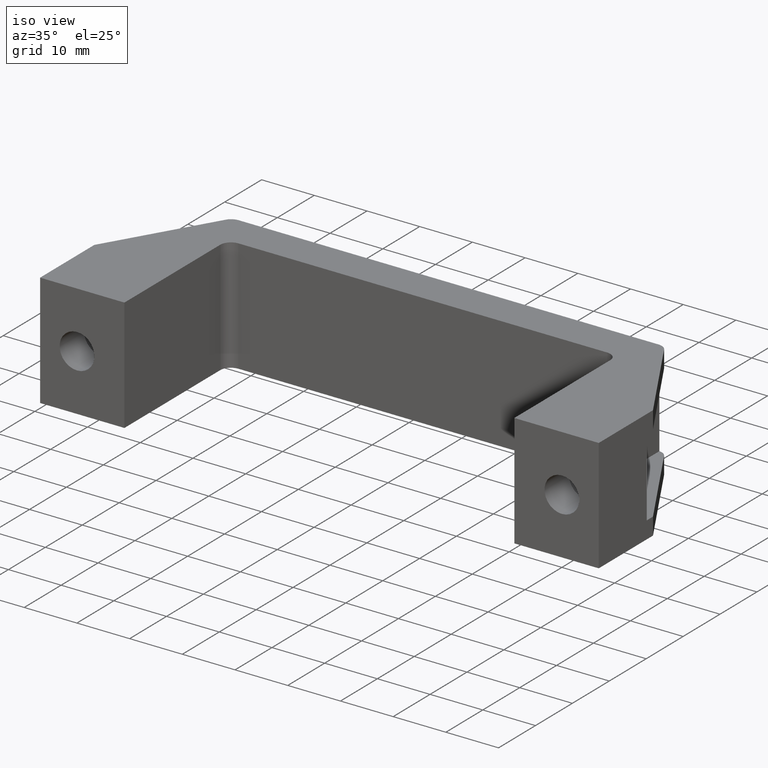
[diagram: clean part render]
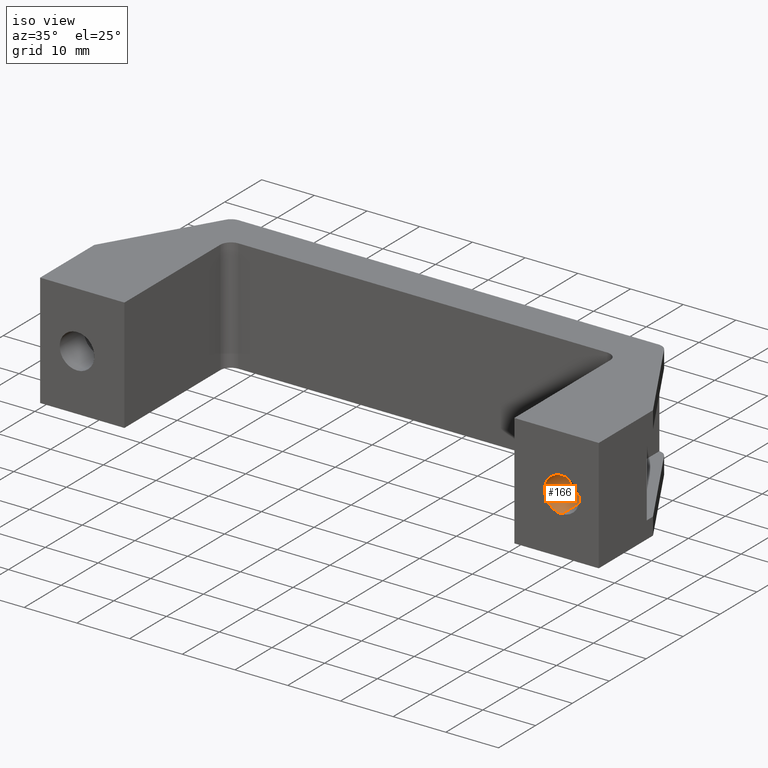
[diagram: same view with one face highlighted and labeled with its STEP entity id]
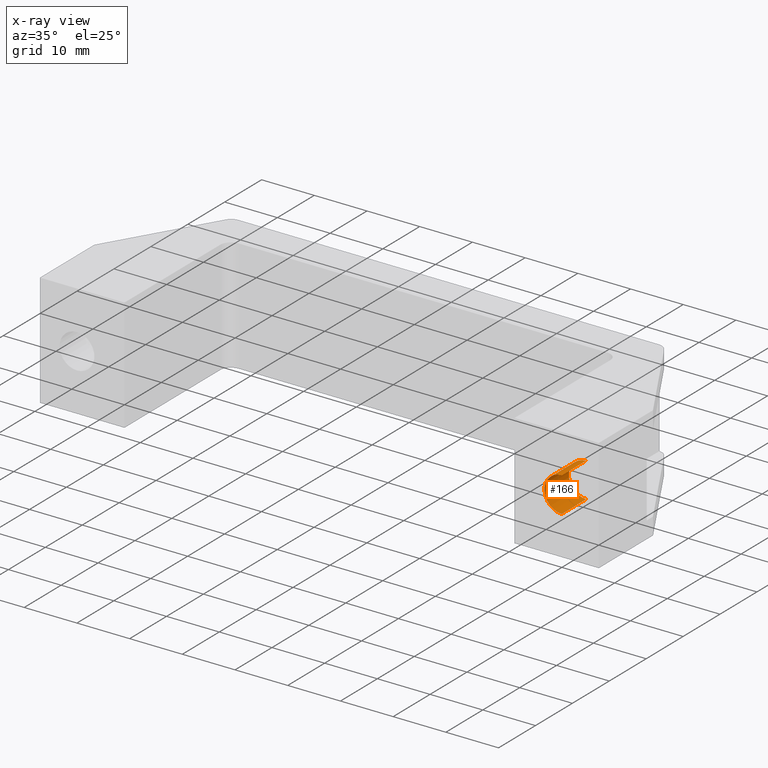
[diagram: x-ray of the same camera — body ghosted, the highlighted face saturated]
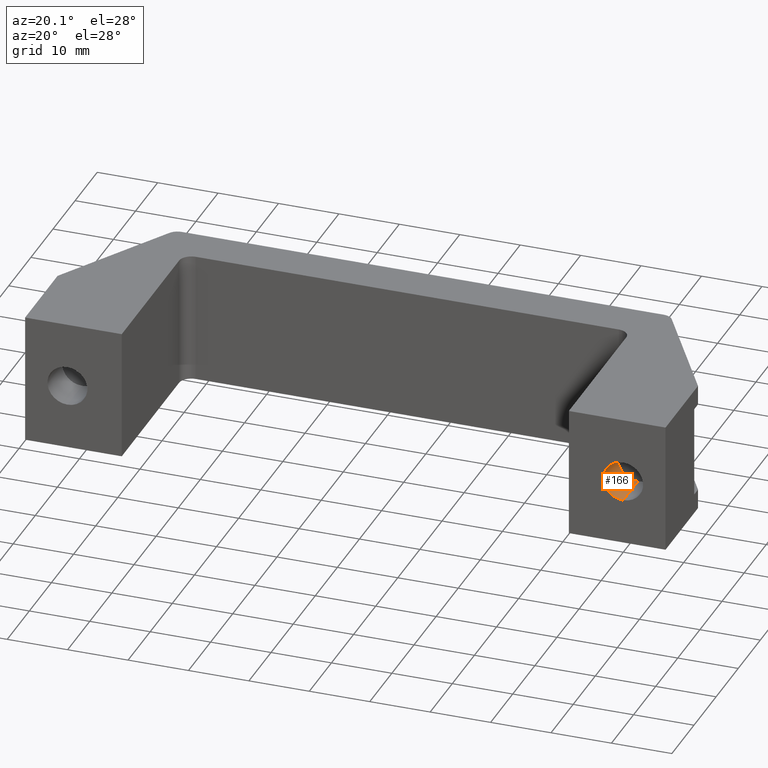
[diagram: same view with one face highlighted and labeled with its STEP entity id]
A machine part, iso view. The second image highlights one B-rep face of the part: STEP entity #166.
The next image is the same camera in x-ray: the body ghosted, the highlighted face saturated — about 0% of this face is hidden behind the body in this view.
A second angle (auxiliary view) of the same face is appended — the face is thin or edge-on in the first view.
In plain terms, the highlighted cylindrical surface (edge-blend (fillet) strip) has radius 3.3 mm, axis along (-0, 1, 0).
Its self-contained STEP definition (entity closure, byte-faithful):
#123 = AXIS2_PLACEMENT_3D ( 'NONE', #1114, #1111, #1106 ) ;
#127 = AXIS2_PLACEMENT_3D ( 'NONE', #1117, #1116, #1115 ) ;
#166 = ADVANCED_FACE ( 'NONE', ( #568 ), #566, .F. ) ;
#260 = AXIS2_PLACEMENT_3D ( 'NONE', #457, #456, #455 ) ;
#455 = DIRECTION ( 'NONE',  ( 0.0000000000000000000, 0.0000000000000000000, 1.000000000000000000 ) ) ;
#456 = DIRECTION ( 'NONE',  ( -0.0000000000000000000, 1.000000000000000000, 0.0000000000000000000 ) ) ;
#457 = CARTESIAN_POINT ( 'NONE',  ( 100.0000000000000000, 0.0000000000000000000, -10.75000000000000000 ) ) ;
#566 = CYLINDRICAL_SURFACE ( 'NONE', #260, 3.300000000000000700 ) ;
#568 = FACE_OUTER_BOUND ( 'NONE', #599, .T. ) ;
#599 = EDGE_LOOP ( 'NONE', ( #842, #841, #844, #674 ) ) ;
#674 = ORIENTED_EDGE ( 'NONE', *, *, #1146, .F. ) ;
#762 = CIRCLE ( 'NONE', #123, 3.300000000000000700 ) ;
#841 = ORIENTED_EDGE ( 'NONE', *, *, #1147, .T. ) ;
#842 = ORIENTED_EDGE ( 'NONE', *, *, #1138, .F. ) ;
#844 = ORIENTED_EDGE ( 'NONE', *, *, #1145, .T. ) ;
#869 = VECTOR ( 'NONE', #1109, 1000.000000000000000 ) ;
#878 = LINE ( 'NONE', #1113, #880 ) ;
#879 = CIRCLE ( 'NONE', #127, 3.300000000000000700 ) ;
#880 = VECTOR ( 'NONE', #1112, 1000.000000000000000 ) ;
#881 = LINE ( 'NONE', #1110, #869 ) ;
#1041 = CARTESIAN_POINT ( 'NONE',  ( 100.0000000000000000, 6.599999999999999600, -14.05000000000000200 ) ) ;
#1043 = CARTESIAN_POINT ( 'NONE',  ( 100.0000000000000000, 6.599999999999999600, -7.450000000000000200 ) ) ;
#1055 = CARTESIAN_POINT ( 'NONE',  ( 100.0000000000000000, 0.0000000000000000000, -14.05000000000000200 ) ) ;
#1057 = CARTESIAN_POINT ( 'NONE',  ( 100.0000000000000000, 0.0000000000000000000, -7.450000000000000200 ) ) ;
#1106 = DIRECTION ( 'NONE',  ( 0.0000000000000000000, 0.0000000000000000000, 1.000000000000000000 ) ) ;
#1109 = DIRECTION ( 'NONE',  ( -0.0000000000000000000, 1.000000000000000000, 0.0000000000000000000 ) ) ;
#1110 = CARTESIAN_POINT ( 'NONE',  ( 100.0000000000000000, 0.0000000000000000000, -14.05000000000000200 ) ) ;
#1111 = DIRECTION ( 'NONE',  ( -0.0000000000000000000, 1.000000000000000000, 0.0000000000000000000 ) ) ;
#1112 = DIRECTION ( 'NONE',  ( -0.0000000000000000000, 1.000000000000000000, 0.0000000000000000000 ) ) ;
#1113 = CARTESIAN_POINT ( 'NONE',  ( 100.0000000000000000, 0.0000000000000000000, -7.450000000000000200 ) ) ;
#1114 = CARTESIAN_POINT ( 'NONE',  ( 100.0000000000000000, 0.0000000000000000000, -10.75000000000000000 ) ) ;
#1115 = DIRECTION ( 'NONE',  ( 0.0000000000000000000, 0.0000000000000000000, 1.000000000000000000 ) ) ;
#1116 = DIRECTION ( 'NONE',  ( -0.0000000000000000000, 1.000000000000000000, 0.0000000000000000000 ) ) ;
#1117 = CARTESIAN_POINT ( 'NONE',  ( 100.0000000000000000, 6.599999999999999600, -10.75000000000000000 ) ) ;
#1138 = EDGE_CURVE ( 'NONE', #1208, #1210, #762, .T. ) ;
#1145 = EDGE_CURVE ( 'NONE', #1194, #1196, #879, .T. ) ;
#1146 = EDGE_CURVE ( 'NONE', #1210, #1196, #878, .T. ) ;
#1147 = EDGE_CURVE ( 'NONE', #1208, #1194, #881, .T. ) ;
#1194 = VERTEX_POINT ( 'NONE', #1041 ) ;
#1196 = VERTEX_POINT ( 'NONE', #1043 ) ;
#1208 = VERTEX_POINT ( 'NONE', #1055 ) ;
#1210 = VERTEX_POINT ( 'NONE', #1057 ) ;